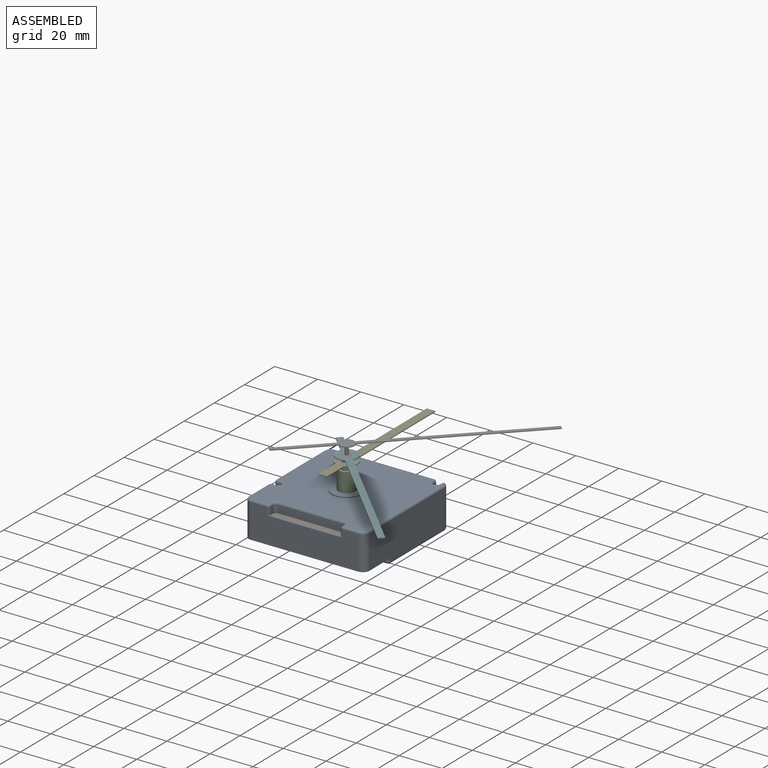
[diagram: assembled view]
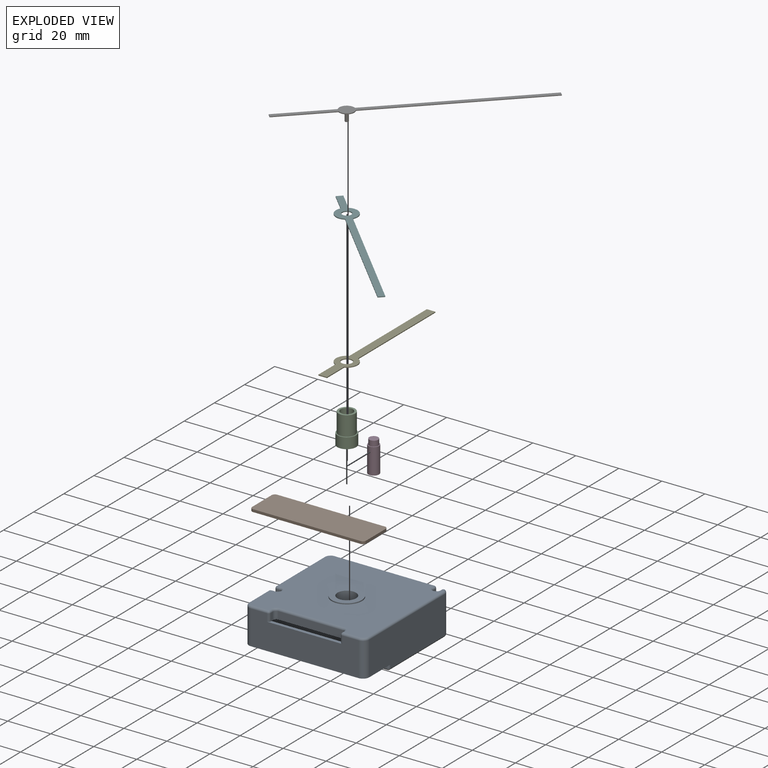
[diagram: exploded view]
GUIDED TOUR — FREECAD ASSEMBLY "TFA_Dostmann_60_3518_01"

This assembly has 7 components, labeled P0..P6 below (a component is one placed body or linked part; the same part can appear more than once), held together by 6 modeled joints. A joint is a constraint between two components; its type names the relative motion it leaves free:
  FASTENED — locks the two components together rigidly (no relative motion),
  REVOLUTE — leaves rotation about the listed axis free (a hinge).
Axis/direction vectors are unit vectors and 'through' points are millimeter coordinates, both in the assembly's world frame.

MATES
  1. FASTENED [Fixed] "Joint": P0 <-> P1, direction (0.000, 0.000, 1.000) through (53.00, 1.50, 14.80) mm
  2. FASTENED [Fixed] "Joint001": P2 <-> P0, direction (0.000, 0.000, 1.000) through (28.00, 28.00, 14.80) mm
  3. REVOLUTE [Revolute] "Joint002": P3 <-> P2, axis (0.000, 0.000, 1.000) through (28.00, 28.00, 19.80) mm
  4. REVOLUTE [Revolute] "Joint003": P3 <-> P4, axis (0.000, 0.000, 1.000) through (28.00, 28.00, 31.80) mm
  5. REVOLUTE [Revolute] "Joint004": P3 <-> P5, axis (0.000, 0.000, 1.000) through (28.00, 28.00, 34.30) mm
  6. REVOLUTE [Revolute] "Joint006": P3 <-> P6, axis (0.000, 0.000, 1.000) through (28.00, 28.00, 34.30) mm

ASSEMBLY ORDER
  1. P1 — the base component [order verified]
  2. P0 [order verified]
  3. P2 [order verified]
  4. P3 [order verified]
  5. P4 [order verified]
  6. P5 [order verified]
  7. P6 [order verified]
Order-tag legend:
  [order verified] — this step's position reverses a verified removal order: the component was checked to insert without passing through the ones already placed.

Of the 7 components, 7 carry a construction recipe — the FreeCAD feature program (sketches with constraints, then the solid features that consume them) that regenerates the part from scratch, quoted from this document or from the linked companion document it references; the rest are supplied as boundary geometry only. The tour below walks the components in assembly order: each is shown spotlighted twice — in the assembled view, then in the exploded view, where a leader line traces a displaced component back to its assembled socket (components that stay in place when exploded have no leader line; saturated green if recipe-attached, orange if geometry-only; every other component desaturated gray) — followed by its recipe or geometry summary and the mates that hold it.
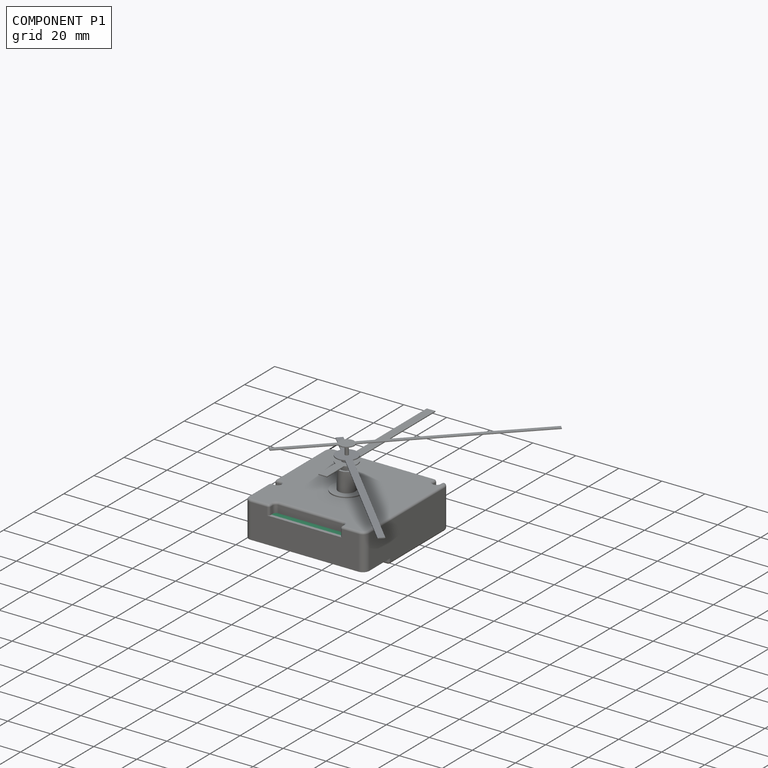
[diagram: component P1 — assembled]
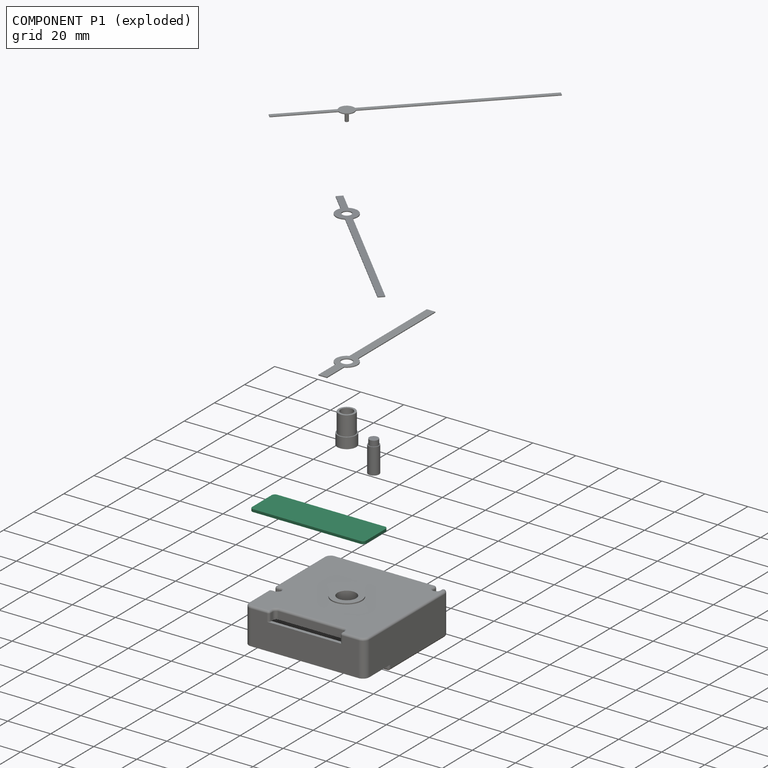
[diagram: component P1 — exploded]
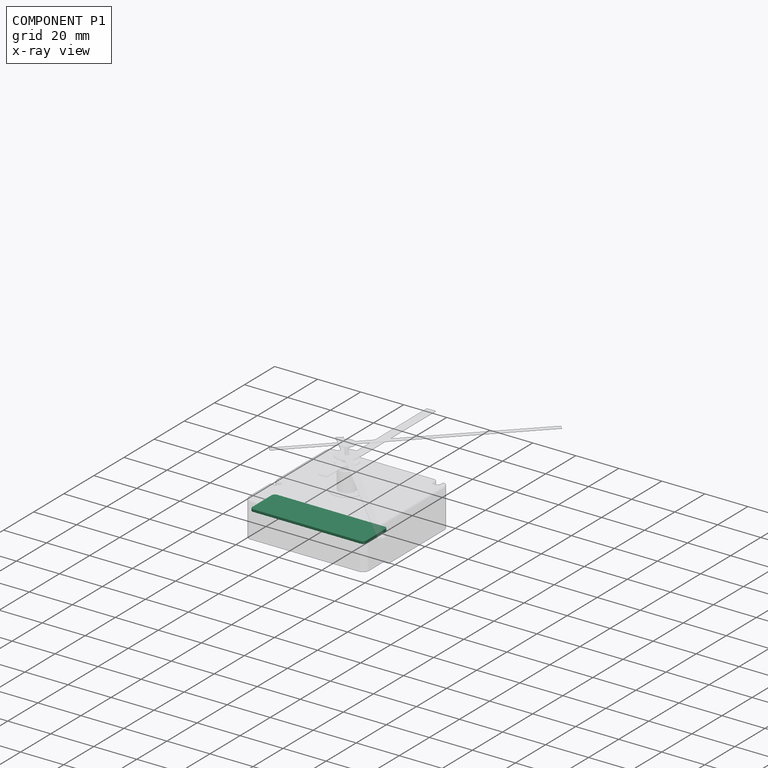
[diagram: component P1 — x-ray view]
COMPONENT P1 — recipe-attached ("PCB", modeled in this document).
Held by: FASTENED mate "Joint" to P0.
Construction recipe (the document's own serialized feature program — sketch geometry with constraints, then the solid features built on it; lengths are millimeters unless a unit is written):

FEATURE [Sketcher::SketchObject] Sketch011
  ArcFitTolerance = 1e-06
  AttachmentSupport = -> [XY_Plane001]
  FullyConstrained = true
  MakeInternals = false
  MapMode = 5
  expr: Constraints[19] = <<Dims>>.Filet_Side - <<Dims>>.Thickness
  expr: Constraints[20] = <<Dims>>.Thickness
  expr: Constraints[21] = <<Dims>>.Thickness
  expr: Constraints[22] = <<Dims>>.Box_Length - <<Dims>>.Battery_Slot_Position
  expr: Constraints[23] = <<Dims>>.Box_Width - 2 * <<Dims>>.Thickness
  sketch-geometry (10):
    g0: LineSegment StartX=1.5 StartY=16 StartZ=0 EndX=1.5 EndY=3 EndZ=0
    g1: LineSegment StartX=3 StartY=1.5 StartZ=0 EndX=53 EndY=1.5 EndZ=0
    g2: LineSegment StartX=54.5 StartY=3 StartZ=0 EndX=54.5 EndY=16 EndZ=0
    g3: LineSegment StartX=53 StartY=17.5 StartZ=0 EndX=3 EndY=17.5 EndZ=0
    g4: ArcOfCircle CenterX=3 CenterY=16 CenterZ=0 NormalX=0 NormalY=0 NormalZ=1 AngleXU=0 Radius=1.5 StartAngle=1.5708 EndAngle=3.14159
    g5: ArcOfCircle CenterX=3 CenterY=3 CenterZ=0 NormalX=0 NormalY=0 NormalZ=1 AngleXU=0 Radius=1.5 StartAngle=3.14159 EndAngle=4.71239
    g6: ArcOfCircle CenterX=53 CenterY=3 CenterZ=0 NormalX=0 NormalY=0 NormalZ=1 AngleXU=0 Radius=1.5 StartAngle=4.71239 EndAngle=6.28319
    g7: ArcOfCircle CenterX=53 CenterY=16 CenterZ=0 NormalX=0 NormalY=0 NormalZ=1 AngleXU=0 Radius=1.5 StartAngle=0 EndAngle=1.5708
    g8: GeomPoint [constr] X=1.5 Y=17.5 Z=0
    g9: GeomPoint [constr] X=54.5 Y=1.5 Z=0
  constraints (24):
    c: Tangent(g0,g4) = -1.5708
    c: Tangent(g0,g5) = -1.5708
    c: Tangent(g1,g5) = -1.5708
    c: Tangent(g1,g6) = -1.5708
    c: Tangent(g2,g6) = -1.5708
    c: Tangent(g2,g7) = -1.5708
    c: Tangent(g3,g7) = -1.5708
    c: Tangent(g3,g4) = -1.5708
    c: Vertical(g0)
    c: Vertical(g2)
    c: Horizontal(g1)
    c: Horizontal(g3)
    c: Equal(g4,g5)
    c: Equal(g5,g6)
    c: Equal(g6,g7)
    c: PointOnObject(g8,g0)
    c: PointOnObject(g8,g3)
    c: PointOnObject(g9,g1)
    c: PointOnObject(g9,g2)
    c: Radius(g5) = 1.5
    c: DistanceY(g-1,g1) = 1.5
    c: DistanceX(g-1,g0) = 1.5
    c: DistanceY(g1,g3) = 16
    c: DistanceX(g0,g2) = 53
FEATURE [PartDesign::Pad] Pad002
  Direction = (0,0,1)
  Length = 1.2
  Length2 = 10
  Profile = -> Sketch011
  ReferenceAxis = -> Sketch011 [N_Axis]
  Refine = true
  Suppressed = false
  Type = 0
  expr: Length = <<Dims>>.PCB_Thickness
FEATURE [PartDesign::Body] Body001  label="PCB"
  AllowCompound = false
  Group = -> [Sketch011,Pad002]
  Origin = -> Origin001
  Placement = pos=(-2.071e-13,-2.129e-13,13.6) rot=(0,0,1;0rad)
  Tip = -> Pad002
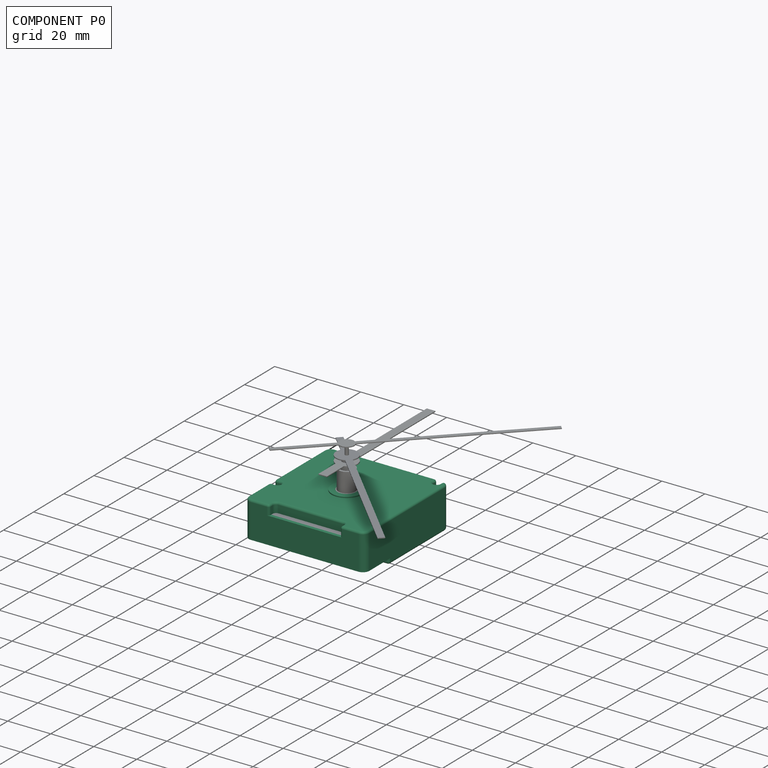
[diagram: component P0 — assembled]
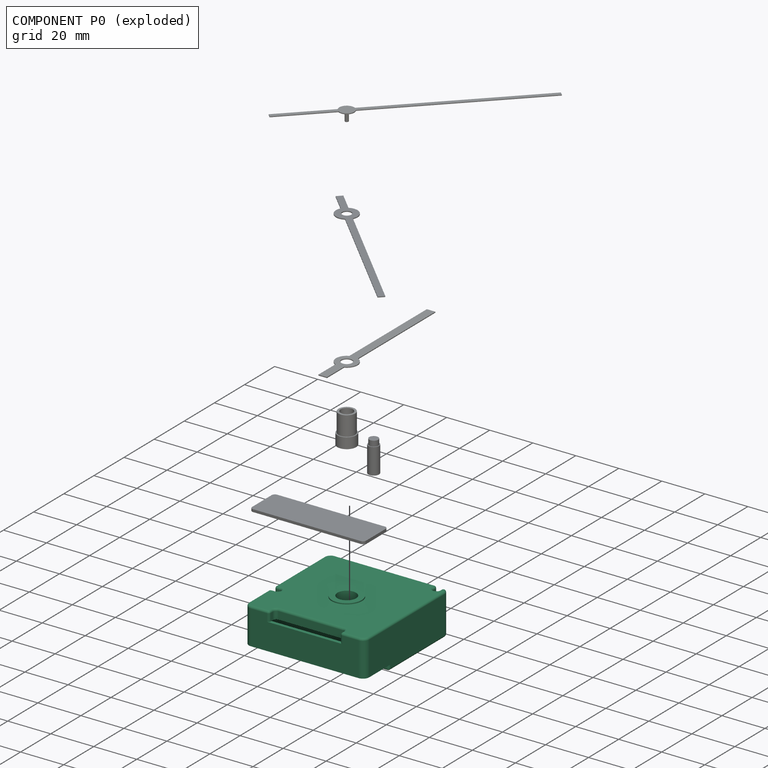
[diagram: component P0 — exploded]
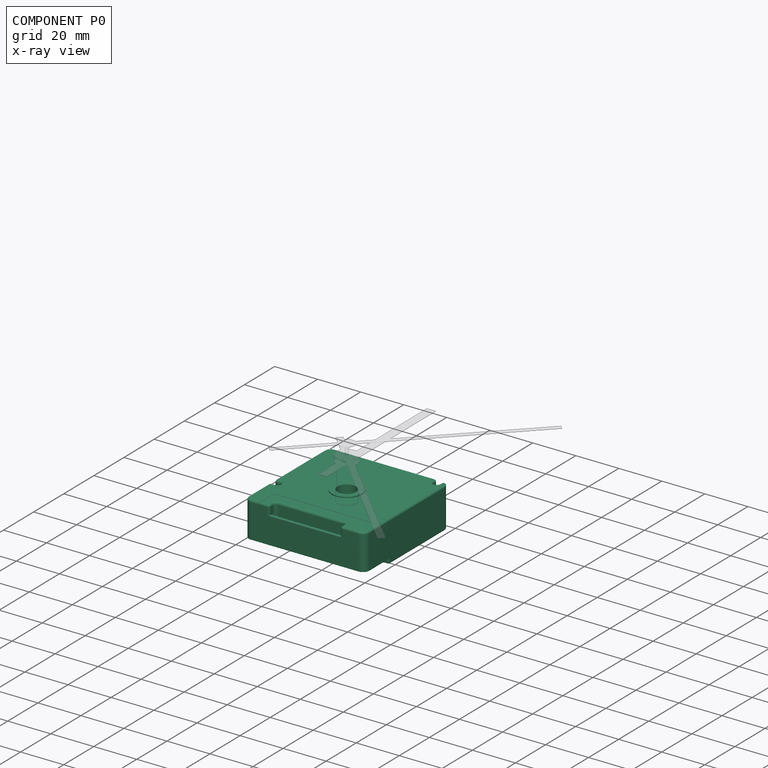
[diagram: component P0 — x-ray view]
COMPONENT P0 — recipe-attached ("Case", modeled in this document).
Held by: FASTENED mate "Joint" to P1; FASTENED mate "Joint001" to P2.
Construction recipe (the document's own serialized feature program — sketch geometry with constraints, then the solid features built on it; lengths are millimeters unless a unit is written):

FEATURE [Sketcher::SketchObject] Sketch
  ArcFitTolerance = 1e-06
  AttachmentSupport = -> [XY_Plane]
  FullyConstrained = true
  MakeInternals = false
  MapMode = 5
  expr: Constraints[19] = <<Dims>>.Filet_Side
  expr: Constraints[22] = <<Dims>>.Box_Width
  expr: Constraints[23] = <<Dims>>.Box_Length
  sketch-geometry (10):
    g0: LineSegment StartX=1.372e-13 StartY=53 StartZ=0 EndX=1.372e-13 EndY=3 EndZ=0
    g1: LineSegment StartX=3 StartY=0 StartZ=0 EndX=53 EndY=0 EndZ=0
    g2: LineSegment StartX=56 StartY=3 StartZ=0 EndX=56 EndY=53 EndZ=0
    g3: LineSegment StartX=53 StartY=56 StartZ=0 EndX=3 EndY=56 EndZ=0
    g4: ArcOfCircle CenterX=3 CenterY=53 CenterZ=0 NormalX=0 NormalY=0 NormalZ=1 AngleXU=0 Radius=3 StartAngle=1.5708 EndAngle=3.14159
    g5: ArcOfCircle CenterX=3 CenterY=3 CenterZ=0 NormalX=0 NormalY=0 NormalZ=1 AngleXU=0 Radius=3 StartAngle=3.14159 EndAngle=4.71239
    g6: ArcOfCircle CenterX=53 CenterY=3 CenterZ=0 NormalX=0 NormalY=0 NormalZ=1 AngleXU=0 Radius=3 StartAngle=4.71239 EndAngle=6.28319
    g7: ArcOfCircle CenterX=53 CenterY=53 CenterZ=0 NormalX=0 NormalY=0 NormalZ=1 AngleXU=0 Radius=3 StartAngle=-3.2e-14 EndAngle=1.5708
    g8: GeomPoint [constr] X=0 Y=56 Z=0
    g9: GeomPoint [constr] X=56 Y=0 Z=0
  constraints (24):
    c: Tangent(g0,g4) = -1.5708
    c: Tangent(g0,g5) = -1.5708
    c: Tangent(g1,g5) = -1.5708
    c: Tangent(g1,g6) = -1.5708
    c: Tangent(g2,g6) = -1.5708
    c: Tangent(g2,g7) = -1.5708
    c: Tangent(g3,g7) = -1.5708
    c: Tangent(g3,g4) = -1.5708
    c: Vertical(g0)
    c: Vertical(g2)
    c: Horizontal(g1)
    c: Horizontal(g3)
    c: Equal(g4,g5)
    c: Equal(g5,g6)
    c: Equal(g6,g7)
    c: PointOnObject(g8,g0)
    c: PointOnObject(g8,g3)
    c: PointOnObject(g9,g1)
    c: PointOnObject(g9,g2)
    c: Radius(g5) = 3
    c: PointOnObject(g8,g-2)
    c: PointOnObject(g9,g-1)
    c: DistanceX(g0,g2) = 56
    c: DistanceY(g1,g3) = 56
FEATURE [PartDesign::Pad] Pad
  Direction = (0,0,1)
  Length = 19.3
  Length2 = 10
  Profile = -> Sketch
  ReferenceAxis = -> Sketch [N_Axis]
  Refine = true
  Suppressed = false
  Type = 0
  expr: Length = <<Dims>>.Box_Height
FEATURE [Sketcher::SketchObject] Sketch001
  ArcFitTolerance = 1e-06
  AttachmentSupport = -> [Pad]
  ExternalGeometry = -> [Pad]
  FullyConstrained = true
  MakeInternals = false
  MapMode = 5
  Placement = pos=(0,0,19.3) rot=(0,0,1;0rad)
  expr: Constraints[0] = <<Dims>>.Hole_Pocket_Diameter
  expr: Constraints[12] = <<Dims>>.Hole_Position_Depth
  expr: Constraints[13] = <<Dims>>.Top_Hole_X
  sketch-geometry (5):
    g0: ArcOfCircle CenterX=51.9 CenterY=53.5 CenterZ=0 NormalX=0 NormalY=0 NormalZ=1 AngleXU=0 Radius=1.5 StartAngle=3.14159 EndAngle=6.28319
    g1: LineSegment StartX=53.4 StartY=53.5 StartZ=0 EndX=53.4 EndY=56 EndZ=0
    g2: LineSegment StartX=53.4 StartY=56 StartZ=0 EndX=50.4 EndY=56 EndZ=0
    g3: LineSegment StartX=50.4 StartY=56 StartZ=0 EndX=50.4 EndY=53.5 EndZ=0
    g4: LineSegment [constr] StartX=51.9 StartY=53.5 StartZ=0 EndX=51.9 EndY=52 EndZ=0
  constraints (14):
    c: Diameter(g0) = 3
    c: Coincident(g1,g2)
    c: Coincident(g2,g3)
    c: Horizontal(g2)
    c: Vertical(g1)
    c: Vertical(g3)
    c: PointOnObject(g1,g-3)
    c: Tangent(g3,g0) = -1.5708
    c: Tangent(g0,g1) = -1.5708
    c: Coincident(g4,g0)
    c: PointOnObject(g4,g0)
    c: Vertical(g4)
    c: DistanceY(g4,g2) = 4
    c: DistanceX(g0,g-4) = 5.6
FEATURE [PartDesign::Pocket] Pocket
  BaseFeature = -> Pad
  Direction = (0,0,-1)
  Length = 4.5
  Length2 = 5
  Profile = -> Sketch001
  ReferenceAxis = -> Sketch001 [N_Axis]
  Refine = true
  Suppressed = false
  Type = 0
  expr: Length = <<Dims>>.Top_Thickness
FEATURE [Sketcher::SketchObject] Sketch002
  ArcFitTolerance = 1e-06
  AttachmentSupport = -> [Pocket]
  ExternalGeometry = -> [Pocket]
  FullyConstrained = true
  MakeInternals = false
  MapMode = 5
  Placement = pos=(0,0,19.3) rot=(0,0,1;0rad)
  expr: Constraints[10] = <<Dims>>.Hole_Pocket_Diameter
  expr: Constraints[11] = <<Dims>>.Left_Hole_Y
  expr: Constraints[13] = <<Dims>>.Hole_Position_Depth
  sketch-geometry (5):
    g0: LineSegment StartX=0 StartY=20 StartZ=0 EndX=0 EndY=17 EndZ=0
    g1: LineSegment StartX=0 StartY=17 StartZ=0 EndX=2.5 EndY=17 EndZ=0
    g2: LineSegment StartX=2.5 StartY=20 StartZ=0 EndX=0 EndY=20 EndZ=0
    g3: ArcOfCircle CenterX=2.5 CenterY=18.5 CenterZ=0 NormalX=0 NormalY=0 NormalZ=1 AngleXU=0 Radius=1.5 StartAngle=4e-16 EndAngle=1.5708
    g4: ArcOfCircle CenterX=2.5 CenterY=18.5 CenterZ=0 NormalX=0 NormalY=0 NormalZ=1 AngleXU=0 Radius=1.5 StartAngle=4.71239 EndAngle=6.28319
  constraints (14):
    c: Coincident(g0,g1)
    c: Coincident(g2,g0)
    c: Vertical(g0)
    c: Horizontal(g1)
    c: Horizontal(g2)
    c: PointOnObject(g0,g-2)
    c: Tangent(g2,g3) = -1.5708
    c: Tangent(g1,g4) = -1.5708
    c: Coincident(g3,g4)
    c: Coincident(g4,g3)
    c: Diameter(g3) = 3
    c: DistanceY(g-3,g0) = 20
    c: Horizontal(g3,g3)
    c: DistanceX(g0,g3) = 4
FEATURE [PartDesign::Pocket] Pocket001
  BaseFeature = -> Pocket
  Direction = (0,0,-1)
  Length = 4.5
  Length2 = 5
  Profile = -> Sketch002
  ReferenceAxis = -> Sketch002 [N_Axis]
  Refine = true
  Suppressed = false
  Type = 0
  expr: Length = <<Dims>>.Top_Thickness
FEATURE [Sketcher::SketchObject] Sketch003
  ArcFitTolerance = 1e-06
  AttachmentSupport = -> [Pocket001]
  ExternalGeometry = -> [Pocket001]
  FullyConstrained = true
  MakeInternals = false
  MapMode = 5
  Placement = pos=(0,0,19.3) rot=(0,0,1;0rad)
  expr: Constraints[18] = <<Dims>>.Slot_Filet
  expr: Constraints[19] = <<Dims>>.Slot_Length
  expr: Constraints[8] = <<Dims>>.Slot_Width
  sketch-geometry (9):
    g0: LineSegment StartX=11.5 StartY=2.5 StartZ=0 EndX=11.5 EndY=0 EndZ=0
    g1: LineSegment StartX=11.5 StartY=0 StartZ=0 EndX=44.5 EndY=0 EndZ=0
    g2: LineSegment StartX=44.5 StartY=0 StartZ=0 EndX=44.5 EndY=2.5 EndZ=0
    g3: LineSegment StartX=43 StartY=4 StartZ=0 EndX=13 EndY=4 EndZ=0
    g4: GeomPoint X=28 Y=0 Z=0
    g5: ArcOfCircle CenterX=43 CenterY=2.5 CenterZ=0 NormalX=0 NormalY=0 NormalZ=1 AngleXU=0 Radius=1.5 StartAngle=2e-16 EndAngle=1.5708
    g6: GeomPoint [constr] X=44.5 Y=4 Z=0
    g7: ArcOfCircle CenterX=13 CenterY=2.5 CenterZ=0 NormalX=0 NormalY=0 NormalZ=1 AngleXU=0 Radius=1.5 StartAngle=1.5708 EndAngle=3.14159
    g8: GeomPoint [constr] X=11.5 Y=4 Z=0
  constraints (20):
    c: Coincident(g0,g1)
    c: Coincident(g1,g2)
    c: Vertical(g0)
    c: Vertical(g2)
    c: Horizontal(g1)
    c: Horizontal(g3)
    c: Symmetric(g1,g1,g4)
    c: Symmetric(g-3,g-3,g4)
    c: DistanceX(g0,g1) = 33
    c: PointOnObject(g6,g2)
    c: PointOnObject(g6,g3)
    c: Tangent(g2,g5) = -1.5708
    c: Tangent(g3,g5) = -1.5708
    c: PointOnObject(g8,g0)
    c: PointOnObject(g8,g3)
    c: Tangent(g0,g7) = -1.5708
    c: Tangent(g3,g7) = -1.5708
    c: Equal(g5,g7)
    c: Radius(g5) = 1.5
    c: DistanceY(g1,g3) = 4
FEATURE [PartDesign::Pocket] Pocket002
  BaseFeature = -> Pocket001
  Direction = (0,0,-1)
  Length = 4.5
  Length2 = 5
  Profile = -> Sketch003
  ReferenceAxis = -> Sketch003 [N_Axis]
  Refine = true
  Suppressed = false
  Type = 0
  expr: Length = <<Dims>>.Top_Thickness
FEATURE [Sketcher::SketchObject] Sketch004
  ArcFitTolerance = 1e-06
  AttachmentSupport = -> [Pocket002]
  ExternalGeometry = -> [Pocket002]
  FullyConstrained = true
  MakeInternals = false
  MapMode = 5
  Placement = pos=(0,0,19.3) rot=(0,0,1;0rad)
  expr: Constraints[1] = <<Dims>>.Axle_Diameter + 1 mm
  sketch-geometry (1):
    g0: Circle CenterX=28 CenterY=28 CenterZ=0 NormalX=0 NormalY=0 NormalZ=1 AngleXU=0 Radius=4.35
  constraints (2):
    c: Symmetric(g-3,g-4,g0)
    c: Diameter(g0) = 8.7
FEATURE [PartDesign::Pocket] Pocket003
  BaseFeature = -> Pocket002
  Direction = (0,0,-1)
  Length = 4.5
  Length2 = 5
  Profile = -> Sketch004
  ReferenceAxis = -> Sketch004 [N_Axis]
  Refine = true
  Suppressed = false
  Type = 0
  expr: Length = <<Dims>>.Top_Thickness
FEATURE [PartDesign::Fillet] Fillet
  Base = -> Pocket003 [Edge25,Edge19,Edge3,Edge28,Edge24,Edge6,Edge4,Edge33,Edge35,Edge54,Edge53,Edge48,Edge46,Edge18,Edge20,Edge23,Edge22,Edge21,Edge7,Edge30,Edge26,Edge17,Edge34,Edge36,Edge32,Edge31,Edge29,Edge27]
  BaseFeature = -> Pocket003
  Radius = 1
  Refine = true
  SupportTransform = false
  Suppressed = false
  UseAllEdges = false
  expr: Radius = <<Dims>>.Box_Filet
FEATURE [Sketcher::SketchObject] Sketch005
  ArcFitTolerance = 1e-06
  AttachmentSupport = -> [Fillet]
  ExternalGeometry = -> [Fillet]
  FullyConstrained = true
  MakeInternals = false
  MapMode = 5
  Placement = pos=(0,0,19.3) rot=(0,0,1;0rad)
  expr: Constraints[0] = <<Dims>>.Platic_Washer_Diameter
  sketch-geometry (2):
    g0: Circle CenterX=28 CenterY=28 CenterZ=0 NormalX=0 NormalY=0 NormalZ=1 AngleXU=0 Radius=7
    g1: Circle CenterX=28 CenterY=28 CenterZ=0 NormalX=0 NormalY=0 NormalZ=1 AngleXU=0 Radius=4.35
  constraints (4):
    c: Diameter(g0) = 14
    c: Coincident(g0,g-3)
    c: Coincident(g1,g0)
    c: Equal(g-3,g1)
FEATURE [PartDesign::Pad] Pad001
  BaseFeature = -> Fillet
  Direction = (0,0,1)
  Length = 0.5
  Length2 = 10
  Profile = -> Sketch005
  ReferenceAxis = -> Sketch005 [N_Axis]
  Refine = true
  Suppressed = false
  Type = 0
  expr: Length = <<Dims>>.Plastic_Washer_Thickness
FEATURE [Sketcher::SketchObject] Sketch006
  ArcFitTolerance = 1e-06
  AttachmentSupport = -> [Pad001]
  ExternalGeometry = -> [Pocket]
  FullyConstrained = true
  MakeInternals = false
  MapMode = 5
  Placement = pos=(0,0,0) rot=(1,0,0;3.14159rad)
  expr: Constraints[10] = Sketch002.Constraints[10]
  expr: Constraints[12] = Sketch002.Constraints[13]
  expr: Constraints[13] = <<Dims>>.Left_Hole_Y
  sketch-geometry (5):
    g0: LineSegment StartX=0 StartY=-17 StartZ=0 EndX=0 EndY=-20 EndZ=0
    g1: LineSegment StartX=0 StartY=-20 StartZ=0 EndX=2.5 EndY=-20 EndZ=0
    g2: LineSegment StartX=2.5 StartY=-17 StartZ=0 EndX=0 EndY=-17 EndZ=0
    g3: ArcOfCircle CenterX=2.5 CenterY=-18.5 CenterZ=0 NormalX=0 NormalY=0 NormalZ=1 AngleXU=0 Radius=1.5 StartAngle=1e-16 EndAngle=1.5708
    g4: ArcOfCircle CenterX=2.5 CenterY=-18.5 CenterZ=0 NormalX=0 NormalY=0 NormalZ=1 AngleXU=0 Radius=1.5 StartAngle=4.71239 EndAngle=6.28319
  constraints (14):
    c: Coincident(g0,g1)
    c: Coincident(g2,g0)
    c: Vertical(g0)
    c: Horizontal(g1)
    c: Horizontal(g2)
    c: PointOnObject(g0,g-2)
    c: Tangent(g2,g3) = -1.5708
    c: Tangent(g1,g4) = -1.5708
    c: Coincident(g3,g4)
    c: Coincident(g4,g3)
    c: Diameter(g3) = 3
    c: Horizontal(g3,g3)
    c: DistanceX(g0,g3) = 4
    c: DistanceY(g0,g-3) = 20
FEATURE [PartDesign::Pocket] Pocket004
  BaseFeature = -> Pad001
  Direction = (0,0,1)
  Length = 0
  Length2 = 5
  Offset = -2.7
  Profile = -> Sketch006
  ReferenceAxis = -> Sketch006 [N_Axis]
  Refine = true
  Suppressed = false
  Type = 3
  UpToFace = -> Pad001 [Face9]
  expr: Offset = -<<Dims>>.Hole_Support_Thickness
FEATURE [Sketcher::SketchObject] MirroredSketch
  ArcFitTolerance = 1e-06
  AttachmentSupport = -> [Pocket004]
  ExternalGeometry = -> [Sketch001]
  FullyConstrained = true
  MakeInternals = false
  MapMode = 5
  Placement = pos=(0,0,0) rot=(1,0,0;3.14159rad)
  sketch-geometry (5):
    g0: ArcOfCircle CenterX=51.9 CenterY=-53.5 CenterZ=0 NormalX=0 NormalY=0 NormalZ=1 AngleXU=0 Radius=1.5 StartAngle=4.16e-14 EndAngle=3.14159
    g1: LineSegment StartX=53.4 StartY=-53.5 StartZ=0 EndX=53.4 EndY=-56 EndZ=0
    g2: LineSegment StartX=53.4 StartY=-56 StartZ=0 EndX=50.4 EndY=-56 EndZ=0
    g3: LineSegment StartX=50.4 StartY=-56 StartZ=0 EndX=50.4 EndY=-53.5 EndZ=0
    g4: LineSegment [constr] StartX=51.9 StartY=-53.5 StartZ=0 EndX=51.9 EndY=-52 EndZ=0
  constraints (12):
    c: Diameter(g0) = 3
    c: Coincident(g1,g2)
    c: Coincident(g2,g3)
    c: Horizontal(g2)
    c: Vertical(g1)
    c: Tangent(g3,g0) = 1.5708
    c: Tangent(g0,g1) = 1.5708
    c: Coincident(g4,g0)
    c: PointOnObject(g4,g0)
    c: Vertical(g4)
    c: Coincident(g-3,g2)
    c: Coincident(g-4,g0)
FEATURE [PartDesign::Pocket] Pocket005
  BaseFeature = -> Pocket004
  Direction = (0,0,1)
  Length = 0
  Length2 = 5
  Offset = -2.7
  Profile = -> MirroredSketch
  ReferenceAxis = -> MirroredSketch [N_Axis]
  Refine = true
  Suppressed = false
  Type = 3
  UpToFace = -> Pocket004 [Face58]
  expr: Offset = -<<Dims>>.Hole_Support_Thickness
FEATURE [Sketcher::SketchObject] Sketch007
  ArcFitTolerance = 1e-06
  AttachmentSupport = -> [Pocket005]
  ExternalGeometry = -> [Pocket005]
  FullyConstrained = true
  MakeInternals = false
  MapMode = 5
  Placement = pos=(0,0,0) rot=(1,0,0;3.14159rad)
  expr: Constraints[16] = <<Dims>>.Thickness
  expr: Constraints[9] = <<Dims>>.Battery_Slot_Position
  sketch-geometry (6):
    g0: LineSegment StartX=56 StartY=-16 StartZ=0 EndX=56 EndY=0 EndZ=0
    g1: LineSegment StartX=56 StartY=0 StartZ=0 EndX=0 EndY=0 EndZ=0
    g2: LineSegment StartX=0 StartY=0 StartZ=0 EndX=0 EndY=-15.5 EndZ=0
    g3: LineSegment StartX=4.15831 StartY=-16 StartZ=0 EndX=56 EndY=-16 EndZ=0
    g4: ArcOfCircle CenterX=2.5 CenterY=-18.5 CenterZ=0 NormalX=0 NormalY=0 NormalZ=1 AngleXU=0 Radius=3 StartAngle=0.985111 EndAngle=1.5708
    g5: LineSegment StartX=0 StartY=-15.5 StartZ=0 EndX=2.5 EndY=-15.5 EndZ=0
  constraints (17):
    c: Coincident(g0,g1)
    c: Coincident(g1,g2)
    c: Coincident(g3,g0)
    c: Vertical(g0)
    c: Vertical(g2)
    c: Horizontal(g1)
    c: Horizontal(g3)
    c: PointOnObject(g0,g-7)
    c: Coincident(g1,g-1)
    c: DistanceY(g-10,g0) = 40
    c: Coincident(g4,g-9)
    c: Coincident(g5,g2)
    c: Coincident(g5,g4)
    c: Horizontal(g5)
    c: Vertical(g4,g-9)
    c: Coincident(g4,g3)
    c: DistanceY(g-9,g4) = 1.5
FEATURE [PartDesign::Pocket] Pocket006
  BaseFeature = -> Pocket005
  Direction = (0,0,1)
  Length = 2.5
  Length2 = 5
  Profile = -> Sketch007
  ReferenceAxis = -> Sketch007 [N_Axis]
  Refine = true
  Suppressed = false
  Type = 0
  expr: Length = <<Dims>>.Battery_Slot_Cut
FEATURE [Sketcher::SketchObject] Sketch008
  ArcFitTolerance = 1e-06
  AttachmentSupport = -> [Pocket006]
  ExternalGeometry = -> [Pocket006]
  FullyConstrained = true
  MakeInternals = false
  MapMode = 5
  Placement = pos=(0,0,2.5) rot=(1,0,0;3.14159rad)
  expr: Constraints[2] = <<Dims>>.Thickness
  sketch-geometry (8):
    g0: ArcOfCircle CenterX=2.5 CenterY=-18.5 CenterZ=0 NormalX=0 NormalY=0 NormalZ=1 AngleXU=0 Radius=3 StartAngle=0.985111 EndAngle=1.5708
    g1: LineSegment StartX=2.5 StartY=-15.5 StartZ=0 EndX=1.5 EndY=-15.5 EndZ=0
    g2: ArcOfCircle CenterX=3 CenterY=-3 CenterZ=0 NormalX=0 NormalY=0 NormalZ=1 AngleXU=0 Radius=1.5 StartAngle=1.5708 EndAngle=3.14159
    g3: LineSegment StartX=1.5 StartY=-15.5 StartZ=0 EndX=1.5 EndY=-3 EndZ=0
    g4: ArcOfCircle CenterX=53 CenterY=-3 CenterZ=0 NormalX=0 NormalY=0 NormalZ=1 AngleXU=0 Radius=1.5 StartAngle=0 EndAngle=1.5708
    g5: LineSegment StartX=3 StartY=-1.5 StartZ=0 EndX=53 EndY=-1.5 EndZ=0
    g6: LineSegment StartX=54.5 StartY=-3 StartZ=0 EndX=54.5 EndY=-16 EndZ=0
    g7: LineSegment StartX=4.15831 StartY=-16 StartZ=0 EndX=54.5 EndY=-16 EndZ=0
  constraints (23):
    c: Coincident(g0,g-4)
    c: Coincident(g0,g-5)
    c: DistanceX(g-6,g1) = 1.5
    c: Coincident(g2,g-7)
    c: Coincident(g3,g1)
    c: Coincident(g3,g2)
    c: Vertical(g3)
    c: Coincident(g4,g-9)
    c: Coincident(g5,g2)
    c: Coincident(g5,g4)
    c: Horizontal(g5)
    c: Coincident(g6,g4)
    c: PointOnObject(g6,g-3)
    c: Vertical(g6)
    c: Coincident(g7,g0)
    c: Coincident(g7,g6)
    c: Horizontal(g7)
    c: Tangent(g6,g4,g4) = 1.5708
    c: Tangent(g4,g5,g4) = 1.5708
    c: Tangent(g5,g2,g2) = 1.5708
    c: Tangent(g2,g3,g2) = 1.5708
    c: Coincident(g1,g0)
    c: Horizontal(g1)
FEATURE [PartDesign::Pocket] Pocket007
  BaseFeature = -> Pocket006
  Direction = (0,0,1)
  Length = 0
  Length2 = 5
  Profile = -> Sketch008
  ReferenceAxis = -> Sketch008 [N_Axis]
  Refine = true
  Suppressed = false
  Type = 3
  UpToFace = -> Pocket006 [Face54]
FEATURE [PartDesign::Fillet] Fillet001
  Base = -> Pocket007 [Edge138,Edge147,Edge132,Edge177,Edge178,Edge179,Edge101,Edge97,Edge180,Edge96,Edge131,Edge102]
  BaseFeature = -> Pocket007
  Radius = 1
  Refine = true
  SupportTransform = false
  Suppressed = false
  UseAllEdges = false
  expr: Radius = <<Dims>>.Box_Filet
FEATURE [PartDesign::Fillet] Fillet002
  Base = -> Fillet001 [Edge67,Edge166,Edge134,Edge69,Edge71,Edge73,Edge138,Edge79,Edge80,Edge77,Edge128,Edge75]
  BaseFeature = -> Fillet001
  Radius = 0.5
  Refine = true
  SupportTransform = false
  Suppressed = false
  UseAllEdges = false
  expr: Radius = <<Dims>>.Box_Filet_Small
FEATURE [Sketcher::SketchObject] Sketch009
  ArcFitTolerance = 1e-06
  AttachmentSupport = -> [Fillet002]
  ExternalGeometry = -> [Fillet002]
  FullyConstrained = true
  MakeInternals = false
  MapMode = 5
  Placement = pos=(0,0,12.1) rot=(1,0,0;3.14159rad)
  expr: Constraints[0] = <<Dims>>.Hole_Diameter
  sketch-geometry (1):
    g0: Circle CenterX=2.5 CenterY=-18.5 CenterZ=0 NormalX=0 NormalY=0 NormalZ=1 AngleXU=0 Radius=1
  constraints (2):
    c: Diameter(g0) = 2
    c: Coincident(g0,g-3)
FEATURE [PartDesign::Pocket] Pocket008
  BaseFeature = -> Fillet002
  Direction = (0,0,1)
  Length = 5
  Length2 = 5
  Profile = -> Sketch009
  ReferenceAxis = -> Sketch009 [N_Axis]
  Refine = true
  Suppressed = false
  Type = 1
FEATURE [Sketcher::SketchObject] Sketch010
  ArcFitTolerance = 1e-06
  AttachmentSupport = -> [Pocket008]
  ExternalGeometry = -> [Pocket008]
  FullyConstrained = true
  MakeInternals = false
  MapMode = 5
  Placement = pos=(0,0,12.1) rot=(1,0,0;3.14159rad)
  expr: Constraints[0] = <<Dims>>.Hole_Diameter
  sketch-geometry (1):
    g0: Circle CenterX=51.9 CenterY=-53.5 CenterZ=0 NormalX=0 NormalY=0 NormalZ=1 AngleXU=0 Radius=1
  constraints (2):
    c: Diameter(g0) = 2
    c: Coincident(g0,g-3)
FEATURE [PartDesign::Pocket] Pocket009
  BaseFeature = -> Pocket008
  Direction = (0,0,1)
  Length = 5
  Length2 = 5
  Profile = -> Sketch010
  ReferenceAxis = -> Sketch010 [N_Axis]
  Refine = true
  Suppressed = false
  Type = 1
FEATURE [PartDesign::Body] Body  label="Case"
  AllowCompound = false
  Group = -> [Sketch,Pad,Sketch001,Pocket,Sketch002,Pocket001,Sketch003,Pocket002,Sketch004,Pocket003,Fillet,Sketch005,Pad001,Sketch006,Pocket004,MirroredSketch,Pocket005,Sketch007,Pocket006,Sketch008,Pocket007,Fillet001,Fillet002,Sketch009,Pocket008,Sketch010,Pocket009]
  Origin = -> Origin
  Tip = -> Pocket009
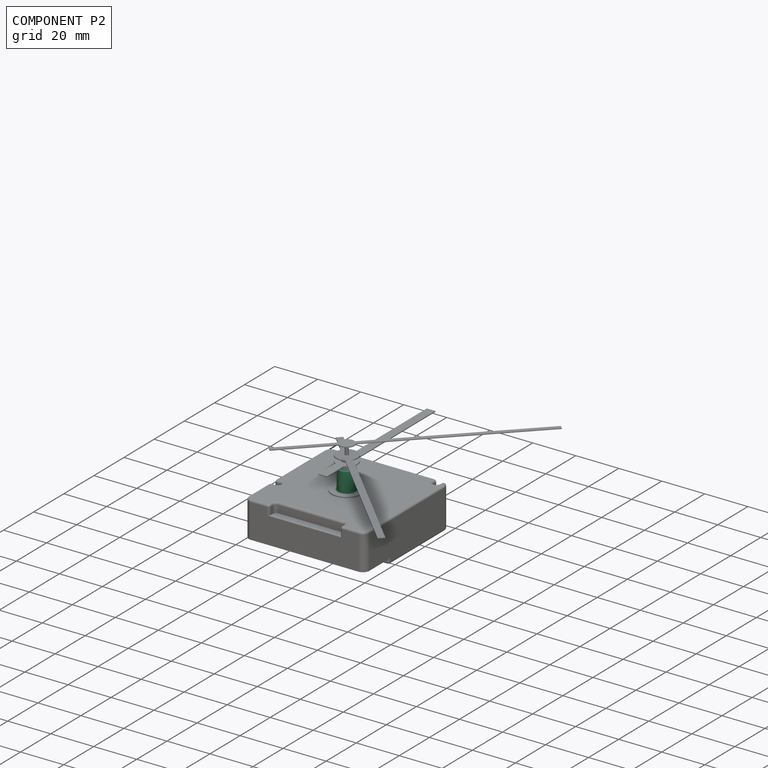
[diagram: component P2 — assembled]
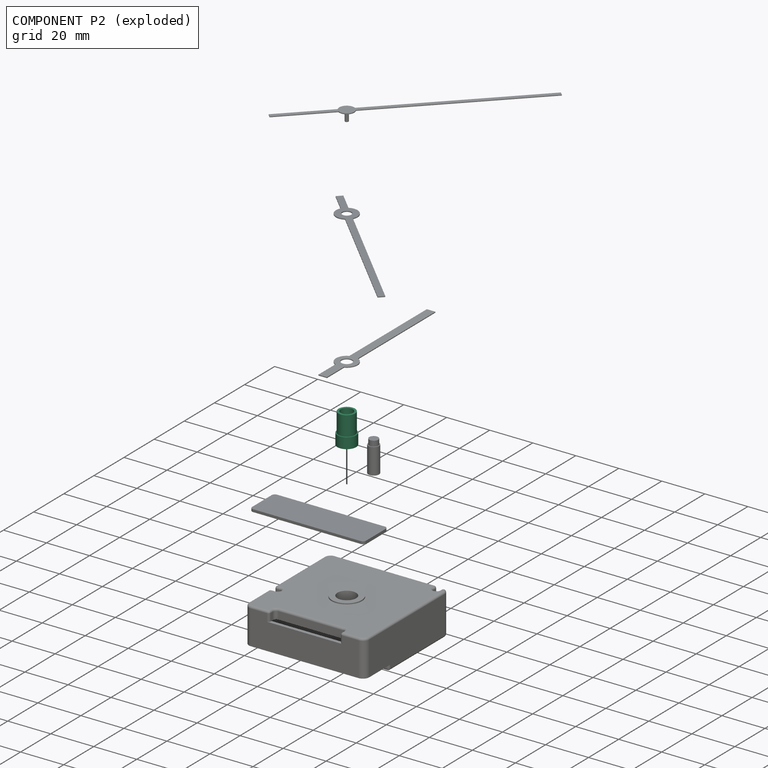
[diagram: component P2 — exploded]
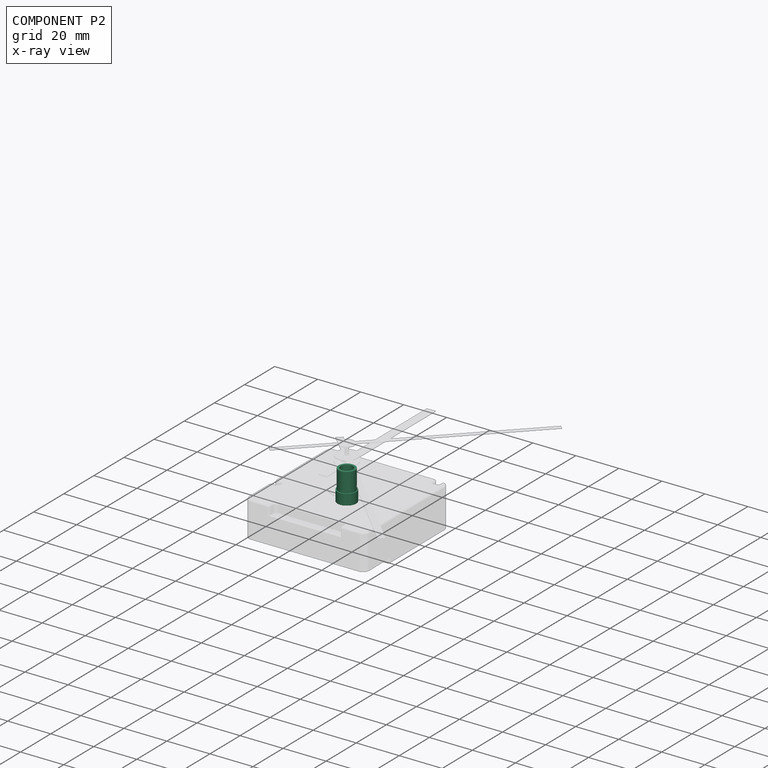
[diagram: component P2 — x-ray view]
COMPONENT P2 — recipe-attached ("Axle", modeled in this document).
Held by: FASTENED mate "Joint001" to P0; REVOLUTE mate "Joint002" to P3.
Construction recipe (the document's own serialized feature program — sketch geometry with constraints, then the solid features built on it; lengths are millimeters unless a unit is written):

FEATURE [Sketcher::SketchObject] Sketch012
  ArcFitTolerance = 1e-06
  AttachmentSupport = -> [XY_Plane003]
  FullyConstrained = true
  MakeInternals = false
  MapMode = 5
  expr: Constraints[0] = <<Dims>>.Axle_Diameter + 1 mm
  sketch-geometry (1):
    g0: Circle CenterX=0 CenterY=0 CenterZ=0 NormalX=0 NormalY=0 NormalZ=1 AngleXU=0 Radius=4.35
  constraints (2):
    c: Diameter(g0) = 8.7
    c: Coincident(g0,g-1)
FEATURE [PartDesign::Pad] Pad003
  Direction = (0,0,1)
  Length = 5
  Length2 = 10
  Profile = -> Sketch012
  ReferenceAxis = -> Sketch012 [N_Axis]
  Refine = true
  Suppressed = false
  Type = 0
  expr: Length = <<Dims>>.Top_Thickness + <<Dims>>.Plastic_Washer_Thickness
FEATURE [Sketcher::SketchObject] Sketch013
  ArcFitTolerance = 1e-06
  AttachmentSupport = -> [Pad003]
  FullyConstrained = true
  MakeInternals = false
  MapMode = 5
  Placement = pos=(0,0,5) rot=(0,0,1;0rad)
  expr: Constraints[0] = <<Dims>>.Axle_Diameter
  sketch-geometry (1):
    g0: Circle CenterX=0 CenterY=0 CenterZ=0 NormalX=0 NormalY=0 NormalZ=1 AngleXU=0 Radius=3.85
  constraints (2):
    c: Diameter(g0) = 7.7
    c: Coincident(g0,g-1)
FEATURE [PartDesign::Pad] Pad004
  BaseFeature = -> Pad003
  Direction = (0,0,1)
  Length = 9
  Length2 = 10
  Profile = -> Sketch013
  ReferenceAxis = -> Sketch013 [N_Axis]
  Refine = true
  Suppressed = false
  Type = 0
  expr: Length = <<Dims>>.Axle_Length
FEATURE [Sketcher::SketchObject] Sketch014
  ArcFitTolerance = 1e-06
  AttachmentSupport = -> [Pad004]
  FullyConstrained = true
  MakeInternals = false
  MapMode = 5
  Placement = pos=(0,0,14) rot=(0,0,1;0rad)
  expr: Constraints[0] = <<Dims>>.Axle_Hole_Diameter
  sketch-geometry (1):
    g0: Circle CenterX=0 CenterY=0 CenterZ=0 NormalX=0 NormalY=0 NormalZ=1 AngleXU=0 Radius=2.85
  constraints (2):
    c: Diameter(g0) = 5.7
    c: Coincident(g0,g-1)
FEATURE [PartDesign::Pocket] Pocket010
  BaseFeature = -> Pad004
  Direction = (0,0,-1)
  Length = 9
  Length2 = 5
  Profile = -> Sketch014
  ReferenceAxis = -> Sketch014 [N_Axis]
  Refine = true
  Suppressed = false
  Type = 0
  expr: Length = <<Dims>>.Axle_Length
FEATURE [PartDesign::Body] Body002  label="Axle"
  AllowCompound = false
  Group = -> [Sketch012,Pad003,Sketch013,Pad004,Sketch014,Pocket010]
  Origin = -> Origin003
  Placement = pos=(28,28,14.8) rot=(0,0,1;0rad)
  Tip = -> Pocket010
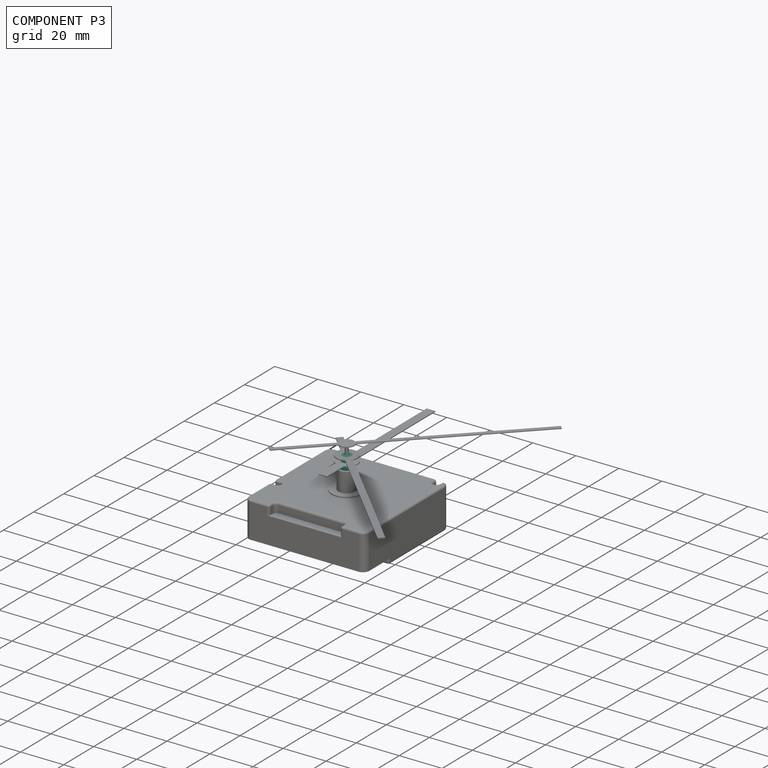
[diagram: component P3 — assembled]
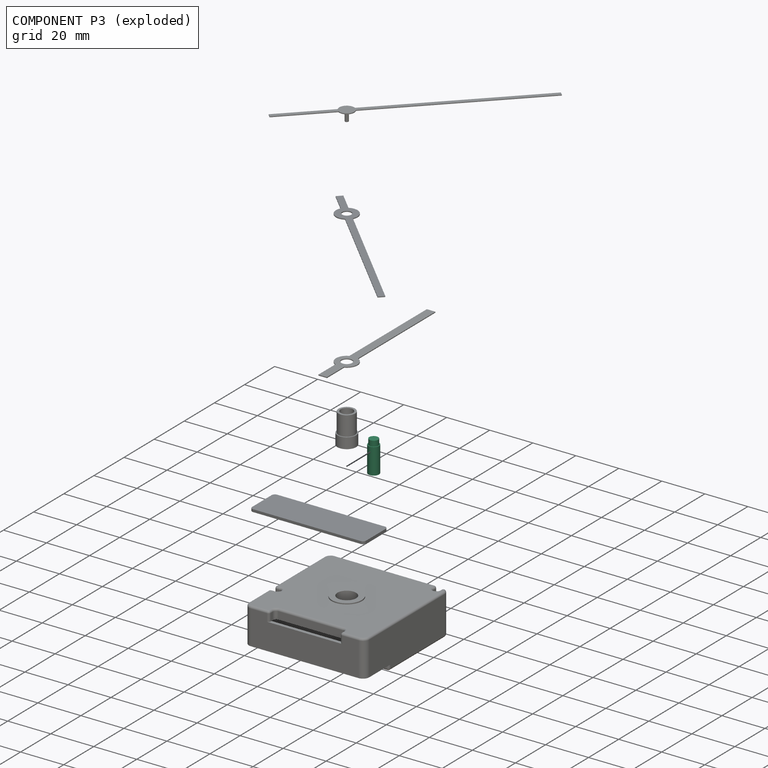
[diagram: component P3 — exploded]
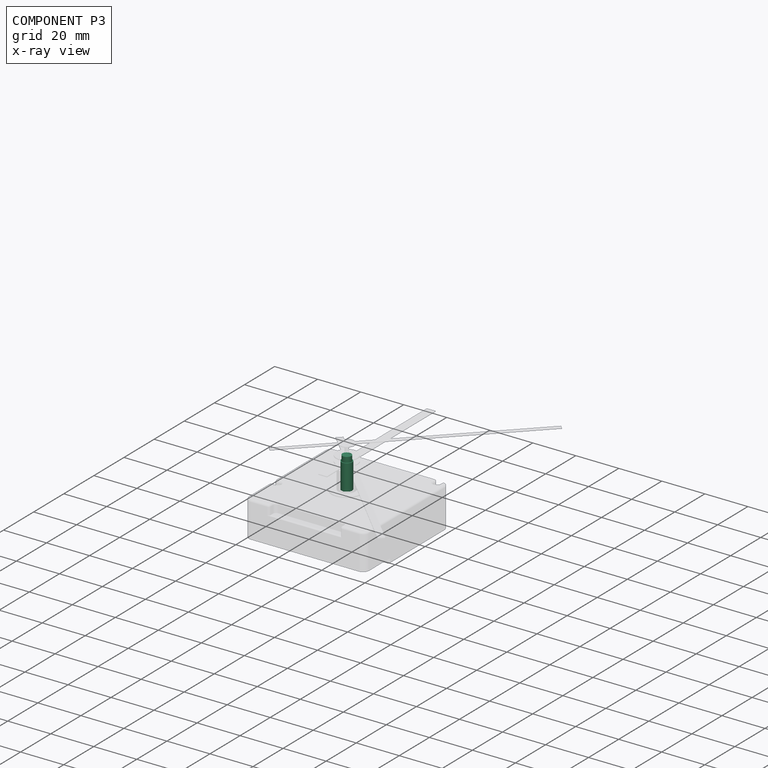
[diagram: component P3 — x-ray view]
COMPONENT P3 — recipe-attached ("HandAxle", modeled in this document).
Held by: REVOLUTE mate "Joint002" to P2; REVOLUTE mate "Joint003" to P4; REVOLUTE mate "Joint004" to P5; REVOLUTE mate "Joint006" to P6.
Construction recipe (the document's own serialized feature program — sketch geometry with constraints, then the solid features built on it; lengths are millimeters unless a unit is written):

FEATURE [Sketcher::SketchObject] Sketch015
  ArcFitTolerance = 1e-06
  AttachmentSupport = -> [XY_Plane004]
  FullyConstrained = true
  MakeInternals = false
  MapMode = 5
  expr: Constraints[0] = <<Dims>>.Axle_Hour_Diameter
  sketch-geometry (1):
    g0: Circle CenterX=0 CenterY=0 CenterZ=0 NormalX=0 NormalY=0 NormalZ=1 AngleXU=0 Radius=2.5
  constraints (2):
    c: Diameter(g0) = 5
    c: Coincident(g0,g-1)
FEATURE [PartDesign::Pad] Pad005
  Direction = (0,0,1)
  Length = 12
  Length2 = 10
  Profile = -> Sketch015
  ReferenceAxis = -> Sketch015 [N_Axis]
  Refine = true
  Suppressed = false
  Type = 0
  expr: Length = <<Dims>>.Axle_Hour_Extrusion
FEATURE [Sketcher::SketchObject] Sketch016
  ArcFitTolerance = 1e-06
  AttachmentSupport = -> [Pad005]
  FullyConstrained = true
  MakeInternals = false
  MapMode = 5
  Placement = pos=(0,0,12) rot=(0,0,1;0rad)
  expr: Constraints[0] = <<Dims>>.Axle_Minute_Diameter
  sketch-geometry (1):
    g0: Circle CenterX=0 CenterY=0 CenterZ=0 NormalX=0 NormalY=0 NormalZ=1 AngleXU=0 Radius=2.1
  constraints (2):
    c: Diameter(g0) = 4.2
    c: Coincident(g0,g-1)
FEATURE [PartDesign::Pad] Pad006
  BaseFeature = -> Pad005
  Direction = (0,0,1)
  Length = 2.5
  Length2 = 10
  Profile = -> Sketch016
  ReferenceAxis = -> Sketch016 [N_Axis]
  Refine = true
  Suppressed = false
  Type = 0
  expr: Length = <<Dims>>.Axle_Minute_Extrusion
FEATURE [PartDesign::Body] Body003  label="HandAxle"
  AllowCompound = false
  Group = -> [Sketch015,Pad005,Sketch016,Pad006]
  Origin = -> Origin004
  Placement = pos=(28,28,19.8) rot=(0,0,1;0rad)
  Tip = -> Pad006
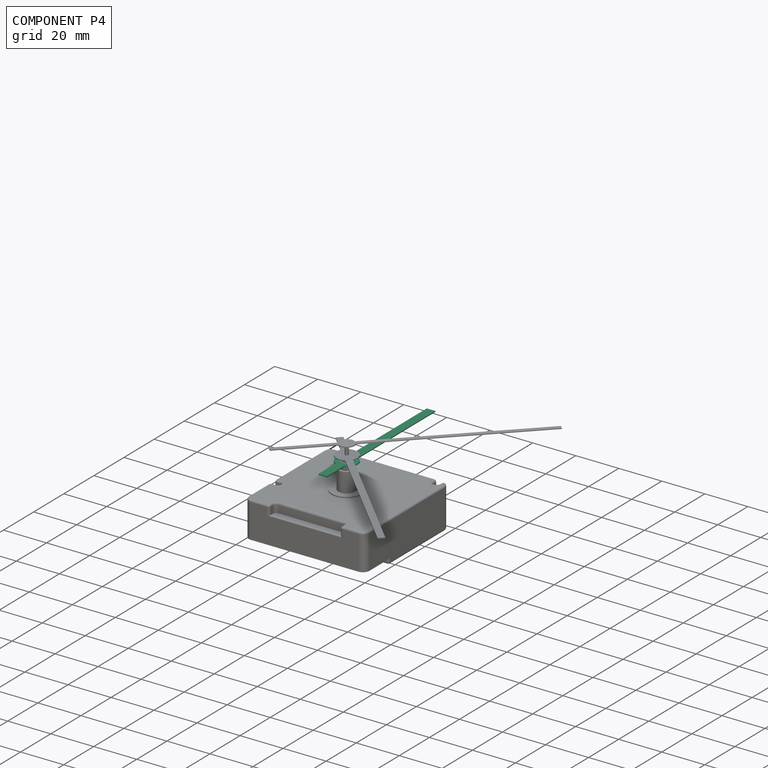
[diagram: component P4 — assembled]
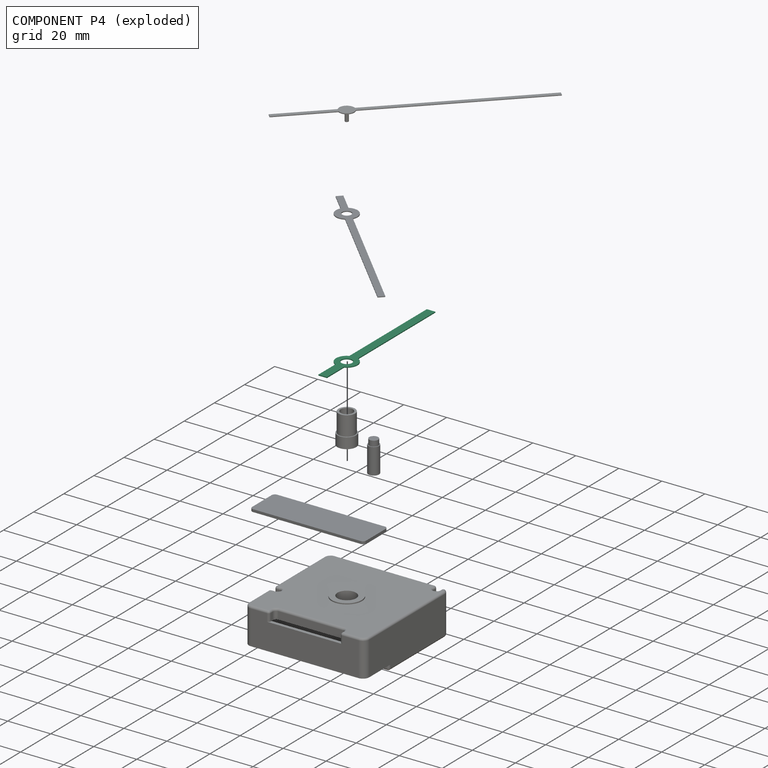
[diagram: component P4 — exploded]
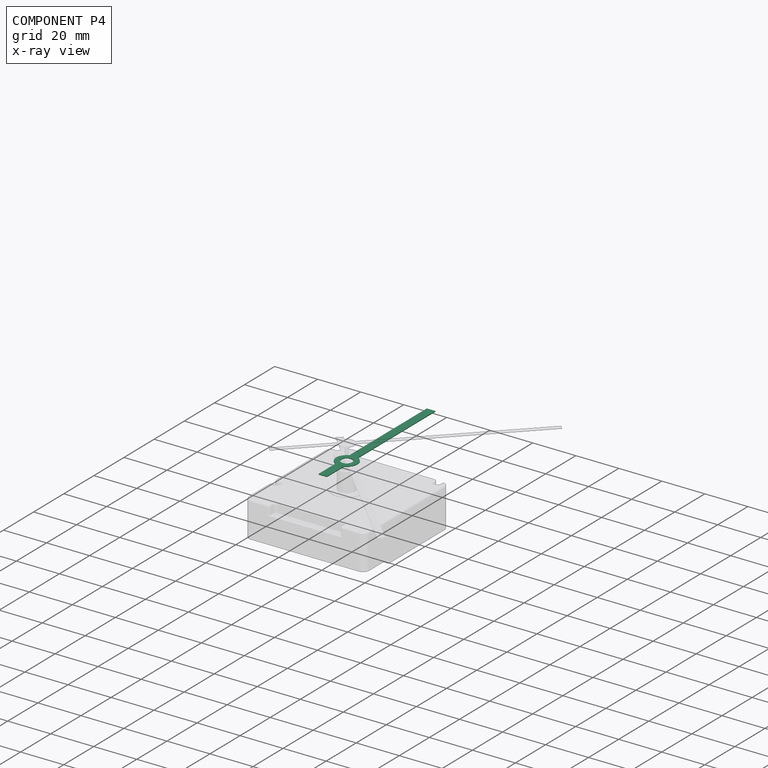
[diagram: component P4 — x-ray view]
COMPONENT P4 — recipe-attached ("HourHand", modeled in this document).
Held by: REVOLUTE mate "Joint003" to P3.
Construction recipe (the document's own serialized feature program — sketch geometry with constraints, then the solid features built on it; lengths are millimeters unless a unit is written):

FEATURE [Sketcher::SketchObject] Sketch017
  ArcFitTolerance = 1e-06
  AttachmentSupport = -> [XY_Plane005]
  FullyConstrained = true
  MakeInternals = false
  MapMode = 5
  expr: Constraints[20] = <<Dims>>.Hour_Hand_Width
  expr: Constraints[21] = <<Dims>>.Hour_Hand_Hole_Position
  expr: Constraints[24] = <<Dims>>.Hour_Hand_Length
  expr: Constraints[25] = <<Dims>>.Axle_Hour_Diameter
  expr: Constraints[8] = <<Dims>>.HM_Hand_Circle_Diameter
  sketch-geometry (9):
    g0: LineSegment StartX=-2 StartY=56 StartZ=0 EndX=-2 EndY=4.58258 EndZ=0
    g1: LineSegment StartX=-2 StartY=-16 StartZ=0 EndX=2 EndY=-16 EndZ=0
    g2: LineSegment StartX=2 StartY=-16 StartZ=0 EndX=2 EndY=-4.58258 EndZ=0
    g3: LineSegment StartX=2 StartY=56 StartZ=0 EndX=-2 EndY=56 EndZ=0
    g4: ArcOfCircle CenterX=0 CenterY=0 CenterZ=0 NormalX=0 NormalY=0 NormalZ=1 AngleXU=0 Radius=5 StartAngle=1.98231 EndAngle=4.30087
    g5: ArcOfCircle CenterX=0 CenterY=0 CenterZ=0 NormalX=0 NormalY=0 NormalZ=1 AngleXU=0 Radius=5 StartAngle=5.12391 EndAngle=7.44246
    g6: LineSegment StartX=-2 StartY=-4.58258 StartZ=0 EndX=-2 EndY=-16 EndZ=0
    g7: LineSegment StartX=2 StartY=4.58258 StartZ=0 EndX=2 EndY=56 EndZ=0
    g8: Circle CenterX=0 CenterY=0 CenterZ=0 NormalX=0 NormalY=0 NormalZ=1 AngleXU=0 Radius=2.5
  constraints (27):
    c: Coincident(g6,g1)
    c: Coincident(g1,g2)
    c: Coincident(g7,g3)
    c: Coincident(g3,g0)
    c: Vertical(g0)
    c: Vertical(g2)
    c: Horizontal(g1)
    c: Symmetric(g0,g7,g-2)
    c: Diameter(g4) = 10
    c: Coincident(g4,g-1)
    c: PointOnObject(g5,g7)
    c: Equal(g4,g5)
    c: PointOnObject(g4,g6)
    c: Coincident(g4,g5)
    c: Coincident(g0,g4)
    c: PointOnObject(g6,g4)
    c: Coincident(g2,g5)
    c: PointOnObject(g7,g5)
    c: Vertical(g7)
    c: Vertical(g6)
    c: DistanceX(g0,g3) = 4
    c: DistanceY(g4,g3) = 56
    c: Horizontal(g4,g2)
    c: Vertical(g0,g4)
    c: DistanceY(g1,g3) = 72
    c: Diameter(g8) = 5
    c: Coincident(g8,g4)
FEATURE [PartDesign::Pad] Pad007
  Direction = (0,0,1)
  Length = 0.4
  Length2 = 10
  Profile = -> Sketch017
  ReferenceAxis = -> Sketch017 [N_Axis]
  Refine = true
  Suppressed = false
  Type = 0
  expr: Length = <<Dims>>.Hand_Thickness
FEATURE [PartDesign::Body] Body004  label="HourHand"
  AllowCompound = false
  Group = -> [Sketch017,Pad007]
  Origin = -> Origin005
  Placement = pos=(28,28,31.4) rot=(0,0,1;0rad)
  Tip = -> Pad007
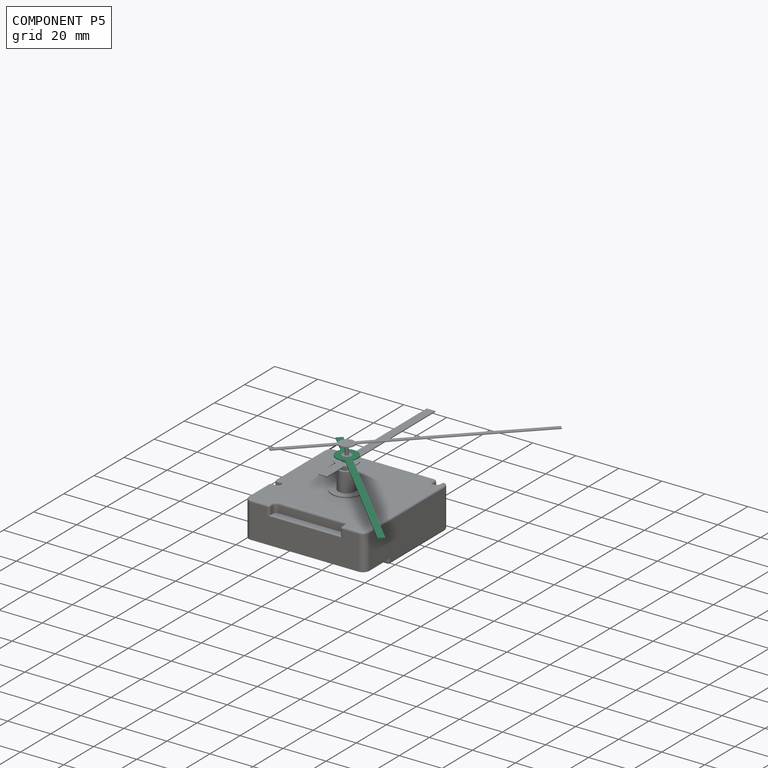
[diagram: component P5 — assembled]
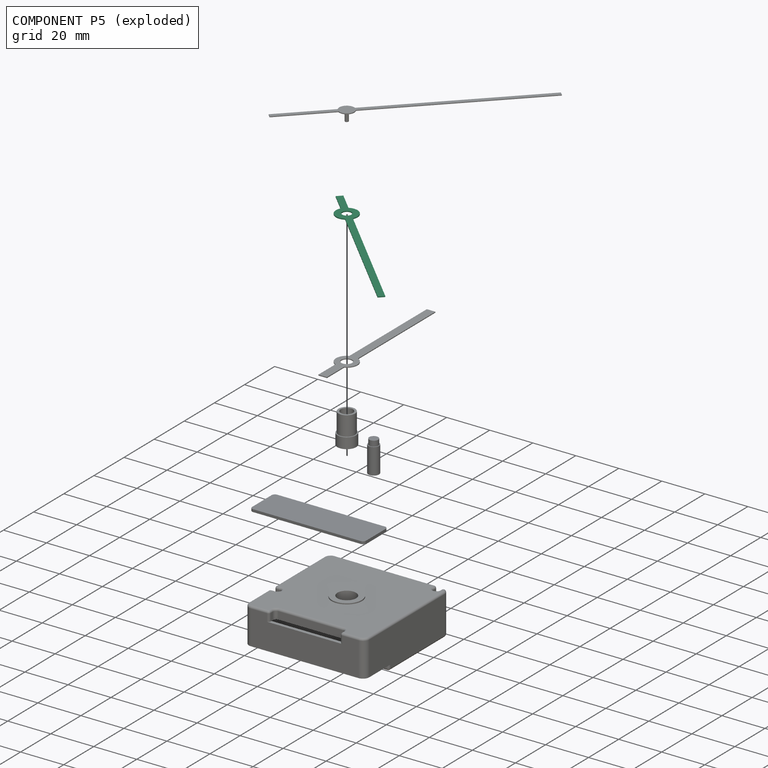
[diagram: component P5 — exploded]
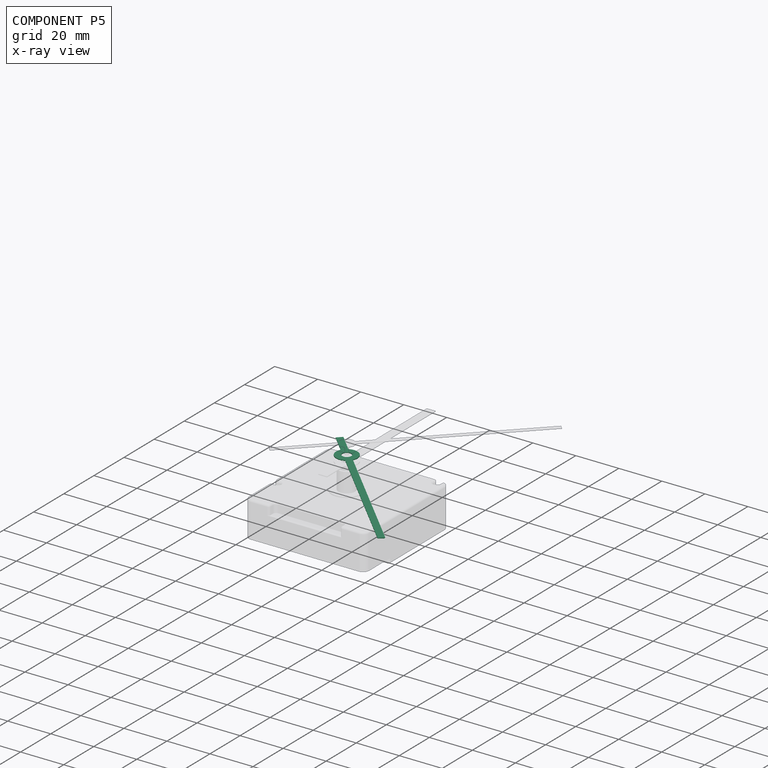
[diagram: component P5 — x-ray view]
COMPONENT P5 — recipe-attached ("MinuteHand", modeled in this document).
Held by: REVOLUTE mate "Joint004" to P3.
Construction recipe (the document's own serialized feature program — sketch geometry with constraints, then the solid features built on it; lengths are millimeters unless a unit is written):

FEATURE [Sketcher::SketchObject] Sketch018
  ArcFitTolerance = 1e-06
  AttachmentSupport = -> [XY_Plane006]
  FullyConstrained = true
  MakeInternals = false
  MapMode = 5
  expr: Constraints[20] = <<Dims>>.Minute_Hand_Width
  expr: Constraints[21] = <<Dims>>.Minute_Hand_Hole_Position
  expr: Constraints[24] = <<Dims>>.Minute_Hand_Length
  expr: Constraints[25] = <<Dims>>.Axle_Minute_Diameter
  expr: Constraints[8] = <<Dims>>.HM_Hand_Circle_Diameter
  sketch-geometry (9):
    g0: LineSegment StartX=-1.5 StartY=76 StartZ=0 EndX=-1.5 EndY=4.7697 EndZ=0
    g1: LineSegment StartX=-1.5 StartY=-16 StartZ=0 EndX=1.5 EndY=-16 EndZ=0
    g2: LineSegment StartX=1.5 StartY=-16 StartZ=0 EndX=1.5 EndY=-4.7697 EndZ=0
    g3: LineSegment StartX=1.5 StartY=76 StartZ=0 EndX=-1.5 EndY=76 EndZ=0
    g4: ArcOfCircle CenterX=0 CenterY=0 CenterZ=0 NormalX=0 NormalY=0 NormalZ=1 AngleXU=0 Radius=5 StartAngle=1.87549 EndAngle=4.4077
    g5: ArcOfCircle CenterX=0 CenterY=0 CenterZ=0 NormalX=0 NormalY=0 NormalZ=1 AngleXU=0 Radius=5 StartAngle=5.01708 EndAngle=7.54929
    g6: LineSegment StartX=-1.5 StartY=-4.7697 StartZ=0 EndX=-1.5 EndY=-16 EndZ=0
    g7: LineSegment StartX=1.5 StartY=4.7697 StartZ=0 EndX=1.5 EndY=76 EndZ=0
    g8: Circle CenterX=0 CenterY=0 CenterZ=0 NormalX=0 NormalY=0 NormalZ=1 AngleXU=0 Radius=2.1
  constraints (27):
    c: Coincident(g6,g1)
    c: Coincident(g1,g2)
    c: Coincident(g7,g3)
    c: Coincident(g3,g0)
    c: Vertical(g0)
    c: Vertical(g2)
    c: Horizontal(g1)
    c: Symmetric(g0,g7,g-2)
    c: Diameter(g4) = 10
    c: Coincident(g4,g-1)
    c: PointOnObject(g5,g7)
    c: Equal(g4,g5)
    c: PointOnObject(g4,g6)
    c: Coincident(g4,g5)
    c: Coincident(g0,g4)
    c: PointOnObject(g6,g4)
    c: Coincident(g2,g5)
    c: PointOnObject(g7,g5)
    c: Vertical(g7)
    c: Vertical(g6)
    c: DistanceX(g0,g3) = 3
    c: DistanceY(g4,g3) = 76
    c: Horizontal(g4,g2)
    c: Vertical(g0,g4)
    c: DistanceY(g1,g3) = 92
    c: Diameter(g8) = 4.2
    c: Coincident(g8,g4)
FEATURE [PartDesign::Pad] Pad008
  Direction = (0,0,1)
  Length = 0.4
  Length2 = 10
  Profile = -> Sketch018
  ReferenceAxis = -> Sketch018 [N_Axis]
  Refine = true
  Suppressed = false
  Type = 0
  expr: Length = <<Dims>>.Hand_Thickness
FEATURE [PartDesign::Body] Body005  label="MinuteHand"
  AllowCompound = false
  Group = -> [Sketch018,Pad008]
  Origin = -> Origin006
  Placement = pos=(28,28,33.9) rot=(0,0,1;3.92699rad)
  Tip = -> Pad008
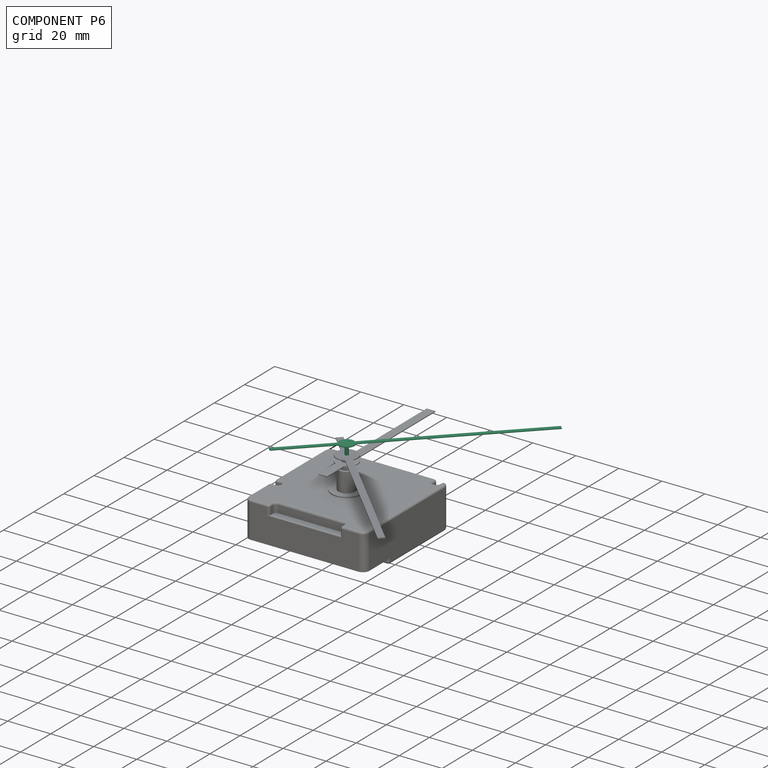
[diagram: component P6 — assembled]
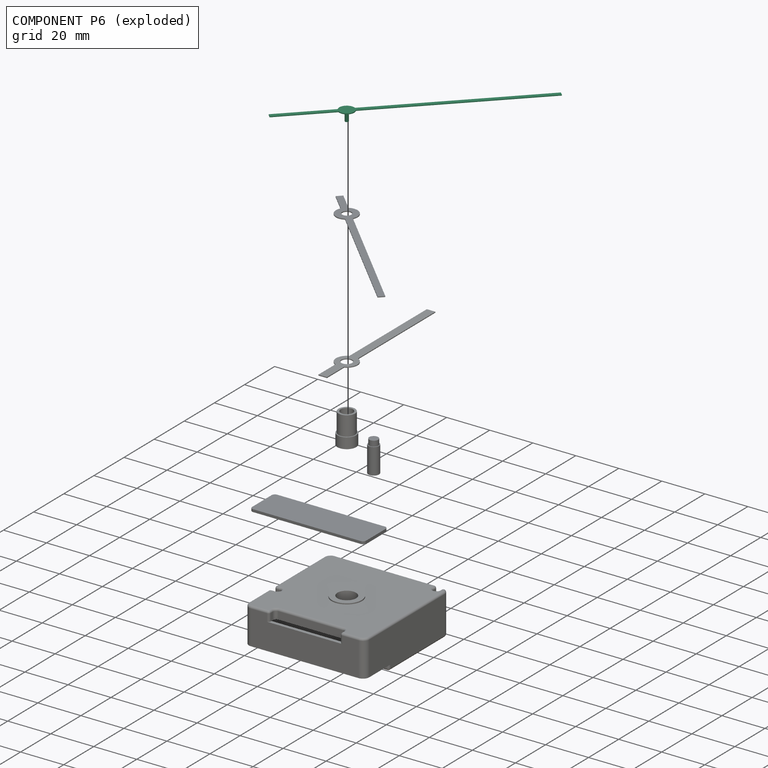
[diagram: component P6 — exploded]
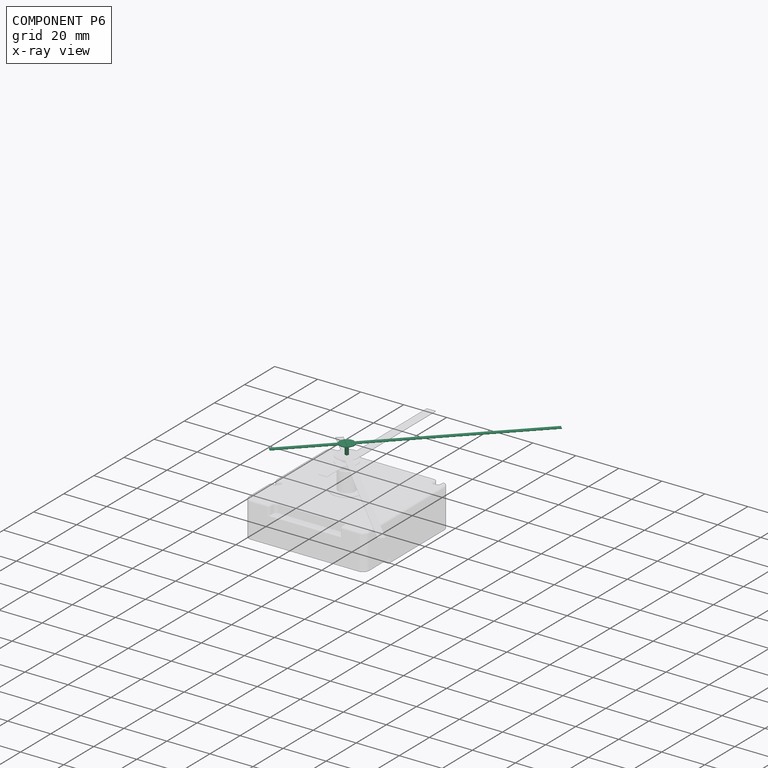
[diagram: component P6 — x-ray view]
COMPONENT P6 — recipe-attached ("SecondHand", modeled in this document).
Held by: REVOLUTE mate "Joint006" to P3.
Construction recipe (the document's own serialized feature program — sketch geometry with constraints, then the solid features built on it; lengths are millimeters unless a unit is written):

FEATURE [Sketcher::SketchObject] Sketch019
  ArcFitTolerance = 1e-06
  AttachmentSupport = -> [XY_Plane007]
  FullyConstrained = true
  MakeInternals = false
  MapMode = 5
  expr: Constraints[18] = <<Dims>>.Second_Hand_Width
  expr: Constraints[19] = <<Dims>>.Second_Hand_Hole_Position
  expr: Constraints[21] = <<Dims>>.Second_Hand_Length
  expr: Constraints[8] = <<Dims>>.Second_Hand_Circle_Diameter
  sketch-geometry (8):
    g0: LineSegment StartX=-1 StartY=83 StartZ=0 EndX=-1 EndY=3.3541 EndZ=0
    g1: LineSegment StartX=-1 StartY=-30 StartZ=0 EndX=1 EndY=-30 EndZ=0
    g2: LineSegment StartX=1 StartY=-30 StartZ=0 EndX=1 EndY=-3.3541 EndZ=0
    g3: LineSegment StartX=1 StartY=83 StartZ=0 EndX=-1 EndY=83 EndZ=0
    g4: ArcOfCircle CenterX=0 CenterY=0 CenterZ=0 NormalX=0 NormalY=0 NormalZ=1 AngleXU=0 Radius=3.5 StartAngle=1.86055 EndAngle=4.42264
    g5: ArcOfCircle CenterX=0 CenterY=0 CenterZ=0 NormalX=0 NormalY=0 NormalZ=1 AngleXU=0 Radius=3.5 StartAngle=5.00214 EndAngle=7.56423
    g6: LineSegment StartX=-1 StartY=-3.3541 StartZ=0 EndX=-1 EndY=-30 EndZ=0
    g7: LineSegment StartX=1 StartY=3.3541 StartZ=0 EndX=1 EndY=83 EndZ=0
  constraints (25):
    c: Coincident(g6,g1)
    c: Coincident(g1,g2)
    c: Coincident(g7,g3)
    c: Coincident(g3,g0)
    c: Vertical(g0)
    c: Vertical(g2)
    c: Horizontal(g1)
    c: Symmetric(g0,g7,g-2)
    c: Diameter(g4) = 7
    c: PointOnObject(g5,g7)
    c: Equal(g4,g5)
    c: PointOnObject(g4,g6)
    c: Coincident(g0,g4)
    c: PointOnObject(g6,g4)
    c: Coincident(g2,g5)
    c: PointOnObject(g7,g5)
    c: Vertical(g7)
    c: Vertical(g6)
    c: DistanceX(g0,g3) = 2
    c: DistanceY(g4,g3) = 83
    c: Vertical(g0,g4)
    c: DistanceY(g1,g3) = 113
    c: Coincident(g5,g-1)
    c: Coincident(g4,g5)
    c: Equal(g1,g3)
FEATURE [PartDesign::Pad] Pad009
  Direction = (0,0,1)
  Length = 0.4
  Length2 = 10
  Profile = -> Sketch019
  ReferenceAxis = -> Sketch019 [N_Axis]
  Refine = true
  Suppressed = false
  Type = 0
  expr: Length = <<Dims>>.Hand_Thickness
FEATURE [Sketcher::SketchObject] Sketch020
  ArcFitTolerance = 1e-06
  AttachmentSupport = -> [Pad009]
  ExternalGeometry = -> [Pad009]
  FullyConstrained = true
  MakeInternals = false
  MapMode = 5
  Placement = pos=(0,0,0) rot=(1,0,0;3.14159rad)
  expr: Constraints[0] = <<Dims>>.Second_Hand_Pivot_Diameter
  sketch-geometry (1):
    g0: Circle CenterX=0 CenterY=0 CenterZ=0 NormalX=0 NormalY=0 NormalZ=1 AngleXU=0 Radius=0.8
  constraints (2):
    c: Diameter(g0) = 1.6
    c: Coincident(g0,g-1)
FEATURE [PartDesign::Pad] Pad010
  BaseFeature = -> Pad009
  Direction = (0,0,-1)
  Length = 4.5
  Length2 = 10
  Profile = -> Sketch020
  ReferenceAxis = -> Sketch020 [N_Axis]
  Refine = true
  Suppressed = false
  Type = 0
  expr: Length = <<Dims>>.Second_Hand_Pivot_Length
FEATURE [PartDesign::Body] Body006  label="SecondHand"
  AllowCompound = false
  Group = -> [Sketch019,Pad009,Sketch020,Pad010]
  Origin = -> Origin007
  Placement = pos=(28,28,38.8) rot=(0,0,-1;0.785398rad)
  Tip = -> Pad010
PROVENANCE & LICENSES
Assembly and component geometry: a FreeCAD (.FCStd) document from a public repository crawl; components, placements and joints were extracted with FreeCAD and each solid tessellated.
Construction recipes: the document's own serialized feature recipes (and, for linked parts, the recipes of companion documents from the same project).
License: as declared in the source repository (recorded in the dataset sidecar).
Joints: native FreeCAD joints and A2plus constraints are mapped to standard mate types.
Verification: 7 of this assembly's 7 components carry a construction recipe (7 from this document itself); the rest are geometry-only. Every component's tessellation passed the extraction mesh gates (mesh-volume checksum against the B-rep where available, bounding-box inflation <= 2%).
Renders: orthographic iso camera (az 35 / el 25); the floor grid conveys scale (grid pitch printed in each image; no ruler). In the exploded view each component is displaced by its stored offset vector: the offsets alone carry the explosion direction (mate normal/axis signs are not orientation cues and do not encode it), and separation distances are assigned per mate-chain, not proportionally to assembly-order depth.
